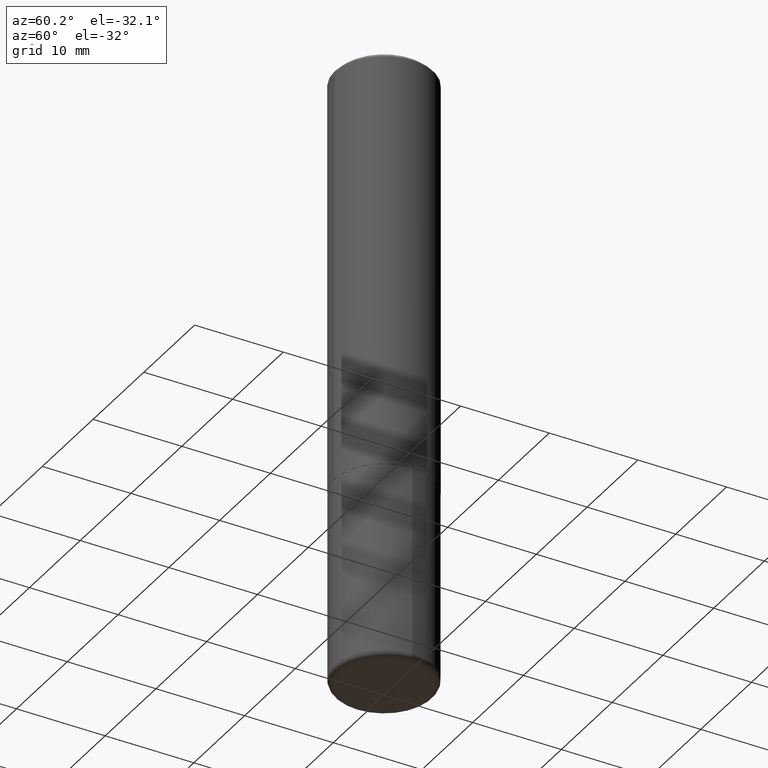
[diagram: clean part render]
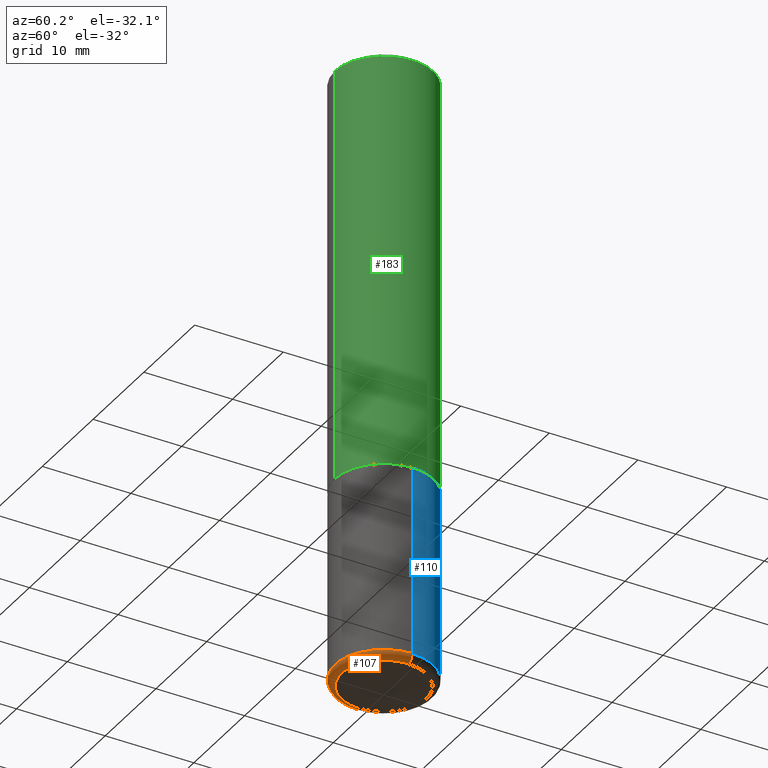
[diagram: same view with three faces highlighted in distinct colors, each labeled with its STEP entity id]
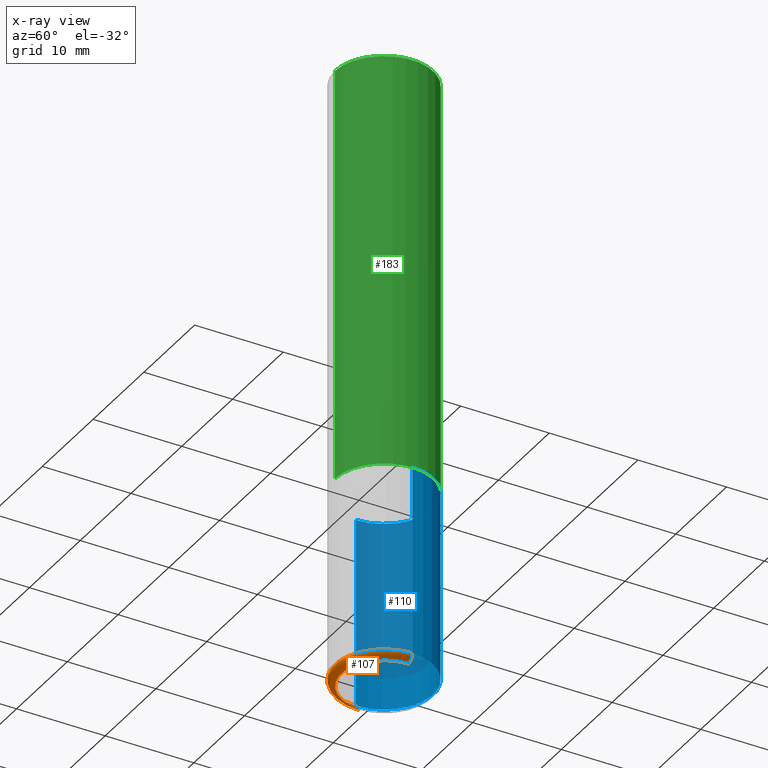
[diagram: x-ray of the same camera — body ghosted, the three highlighted faces saturated]
A machine part, auxiliary view with three faces highlighted in distinct colors.
The next image is the same camera in x-ray (body ghosted, the three faces saturated) — at least one of them is partly hidden behind the body in this view.
Their STEP definitions:

[orange] entity #107 — the highlighted toroidal blend (fillet) surface has major radius 4.7942 mm and minor (blend) radius 0.762 mm.
#43 = CARTESIAN_POINT ( 'NONE',  ( -0.1887500000000000011, -8.155679827906167578E-15, -2.719999999999999751 ) ) ;
#64 = DIRECTION ( 'NONE',  ( 7.105427357601001859E-15, 1.000000000000000000, -3.491481338843145583E-15 ) ) ;
#65 = ORIENTED_EDGE ( 'NONE', *, *, #385, .F. ) ;
#72 = TOROIDAL_SURFACE ( 'NONE', #257, 0.1887500000000000011, 0.02999999999999971440 ) ;
#91 = CARTESIAN_POINT ( 'NONE',  ( -0.1887500000000000011, -8.101470637624799929E-15, -2.749999999999999556 ) ) ;
#92 = CIRCLE ( 'NONE', #117, 0.1887500000000000011 ) ;
#93 = DIRECTION ( 'NONE',  ( 1.000000000000000000, -6.982962677686262766E-15, 4.883557194083112340E-29 ) ) ;
#99 = CARTESIAN_POINT ( 'NONE',  ( 6.651675152823572126E-29, -9.496829241653356490E-15, -2.719999999999999751 ) ) ;
#107 = ADVANCED_FACE ( 'NONE', ( #185 ), #72, .T. ) ;
#109 = CARTESIAN_POINT ( 'NONE',  ( 0.2187499999999998890, -1.102435232739722812E-14, -2.719999999999999751 ) ) ;
#117 = AXIS2_PLACEMENT_3D ( 'NONE', #133, #263, #203 ) ;
#125 = ORIENTED_EDGE ( 'NONE', *, *, #286, .T. ) ;
#133 = CARTESIAN_POINT ( 'NONE',  ( 6.725039217009123399E-29, -9.601573681818648281E-15, -2.749999999999999556 ) ) ;
#153 = DIRECTION ( 'NONE',  ( 1.000000000000000000, -6.982962677686269866E-15, 0.000000000000000000 ) ) ;
#168 = CIRCLE ( 'NONE', #346, 0.02999999999999971440 ) ;
#175 = VERTEX_POINT ( 'NONE', #109 ) ;
#178 = VERTEX_POINT ( 'NONE', #266 ) ;
#185 = FACE_OUTER_BOUND ( 'NONE', #300, .T. ) ;
#191 = ORIENTED_EDGE ( 'NONE', *, *, #362, .F. ) ;
#192 = CARTESIAN_POINT ( 'NONE',  ( 6.651675152823572126E-29, -9.496829241653356490E-15, -2.719999999999999751 ) ) ;
#203 = DIRECTION ( 'NONE',  ( 1.000000000000000000, -6.982962677686272233E-15, 0.000000000000000000 ) ) ;
#219 = VERTEX_POINT ( 'NONE', #91 ) ;
#231 = ORIENTED_EDGE ( 'NONE', *, *, #403, .T. ) ;
#257 = AXIS2_PLACEMENT_3D ( 'NONE', #192, #409, #93 ) ;
#263 = DIRECTION ( 'NONE',  ( -2.445468806185136597E-29, 3.491481338843145583E-15, 1.000000000000000000 ) ) ;
#266 = CARTESIAN_POINT ( 'NONE',  ( 0.1887500000000000011, -1.091960788723193160E-14, -2.749999999999999556 ) ) ;
#271 = CIRCLE ( 'NONE', #301, 0.2187500000000000278 ) ;
#286 = EDGE_CURVE ( 'NONE', #178, #175, #168, .T. ) ;
#288 = DIRECTION ( 'NONE',  ( -1.000000000000000000, 7.105427357600993970E-15, 0.000000000000000000 ) ) ;
#300 = EDGE_LOOP ( 'NONE', ( #191, #231, #125, #65 ) ) ;
#301 = AXIS2_PLACEMENT_3D ( 'NONE', #99, #329, #356 ) ;
#318 = DIRECTION ( 'NONE',  ( -6.982962677686266711E-15, -1.000000000000000000, 3.491481338843145583E-15 ) ) ;
#325 = CARTESIAN_POINT ( 'NONE',  ( -0.2187499999999998890, -7.942517007178138911E-15, -2.719999999999999751 ) ) ;
#329 = DIRECTION ( 'NONE',  ( -2.445468806185136597E-29, 3.491481338843145583E-15, 1.000000000000000000 ) ) ;
#346 = AXIS2_PLACEMENT_3D ( 'NONE', #373, #318, #153 ) ;
#356 = DIRECTION ( 'NONE',  ( 1.000000000000000000, -6.982962677686271444E-15, 0.000000000000000000 ) ) ;
#362 = EDGE_CURVE ( 'NONE', #219, #381, #406, .T. ) ;
#373 = CARTESIAN_POINT ( 'NONE',  ( 0.1887500000000000011, -1.081486344706663980E-14, -2.719999999999999751 ) ) ;
#381 = VERTEX_POINT ( 'NONE', #325 ) ;
#383 = AXIS2_PLACEMENT_3D ( 'NONE', #43, #64, #288 ) ;
#385 = EDGE_CURVE ( 'NONE', #381, #175, #271, .T. ) ;
#403 = EDGE_CURVE ( 'NONE', #219, #178, #92, .T. ) ;
#406 = CIRCLE ( 'NONE', #383, 0.02999999999999971440 ) ;
#409 = DIRECTION ( 'NONE',  ( -2.445468806185136597E-29, 3.491481338843145583E-15, 1.000000000000000000 ) ) ;

[blue] entity #110 — the highlighted cylindrical surface (partial cylindrical patch) has radius 5.5563 mm, axis along (-0, 0, 1).
#5 = DIRECTION ( 'NONE',  ( 1.000000000000000000, -6.982962677686271444E-15, 0.000000000000000000 ) ) ;
#7 = EDGE_CURVE ( 'NONE', #402, #82, #205, .T. ) ;
#10 = CARTESIAN_POINT ( 'NONE',  ( 0.2187500000000000278, -1.527523085743871040E-15, 1.066663669705361025E-29 ) ) ;
#14 = DIRECTION ( 'NONE',  ( -2.445468806185136597E-29, 3.491481338843145583E-15, 1.000000000000000000 ) ) ;
#16 = ORIENTED_EDGE ( 'NONE', *, *, #114, .F. ) ;
#27 = CARTESIAN_POINT ( 'NONE',  ( -0.2187500000000000278, 1.554312234475219354E-15, -1.076017050993260762E-29 ) ) ;
#34 = CARTESIAN_POINT ( 'NONE',  ( 0.000000000000000000, 0.000000000000000000, 0.000000000000000000 ) ) ;
#68 = LINE ( 'NONE', #10, #309 ) ;
#74 = CARTESIAN_POINT ( 'NONE',  ( 6.651675152823572126E-29, -9.496829241653356490E-15, -2.719999999999999751 ) ) ;
#78 = DIRECTION ( 'NONE',  ( -2.445468806185136597E-29, 3.491481338843145583E-15, 1.000000000000000000 ) ) ;
#82 = VERTEX_POINT ( 'NONE', #367 ) ;
#109 = CARTESIAN_POINT ( 'NONE',  ( 0.2187499999999998890, -1.102435232739722812E-14, -2.719999999999999751 ) ) ;
#110 = ADVANCED_FACE ( 'NONE', ( #188 ), #217, .T. ) ;
#113 = DIRECTION ( 'NONE',  ( 1.000000000000000000, -6.982962677686267499E-15, 0.000000000000000000 ) ) ;
#114 = EDGE_CURVE ( 'NONE', #175, #402, #68, .T. ) ;
#142 = AXIS2_PLACEMENT_3D ( 'NONE', #277, #14, #113 ) ;
#162 = DIRECTION ( 'NONE',  ( -2.445468806185136597E-29, 3.491481338843145583E-15, 1.000000000000000000 ) ) ;
#175 = VERTEX_POINT ( 'NONE', #109 ) ;
#186 = AXIS2_PLACEMENT_3D ( 'NONE', #34, #78, #224 ) ;
#188 = FACE_OUTER_BOUND ( 'NONE', #234, .T. ) ;
#193 = DIRECTION ( 'NONE',  ( -2.445468806185136877E-29, 3.491481338843145188E-15, 1.000000000000000000 ) ) ;
#205 = CIRCLE ( 'NONE', #142, 0.2187500000000000000 ) ;
#209 = CIRCLE ( 'NONE', #239, 0.2187500000000000278 ) ;
#217 = CYLINDRICAL_SURFACE ( 'NONE', #186, 0.2187500000000000278 ) ;
#224 = DIRECTION ( 'NONE',  ( 1.000000000000000000, -6.982962677686266711E-15, 4.876176775795935232E-29 ) ) ;
#234 = EDGE_LOOP ( 'NONE', ( #350, #294, #248, #16 ) ) ;
#239 = AXIS2_PLACEMENT_3D ( 'NONE', #74, #162, #5 ) ;
#248 = ORIENTED_EDGE ( 'NONE', *, *, #7, .F. ) ;
#267 = CARTESIAN_POINT ( 'NONE',  ( 0.2187500000000000000, -8.074050596074770339E-15, -1.875000000000000000 ) ) ;
#277 = CARTESIAN_POINT ( 'NONE',  ( 4.585254011597131119E-29, -6.546527510330898707E-15, -1.875000000000000000 ) ) ;
#278 = VECTOR ( 'NONE', #193, 39.37007874015748143 ) ;
#294 = ORIENTED_EDGE ( 'NONE', *, *, #372, .T. ) ;
#299 = LINE ( 'NONE', #27, #278 ) ;
#309 = VECTOR ( 'NONE', #386, 39.37007874015748143 ) ;
#325 = CARTESIAN_POINT ( 'NONE',  ( -0.2187499999999998890, -7.942517007178138911E-15, -2.719999999999999751 ) ) ;
#350 = ORIENTED_EDGE ( 'NONE', *, *, #394, .T. ) ;
#367 = CARTESIAN_POINT ( 'NONE',  ( -0.2187500000000000000, -6.467366141516908442E-15, -1.875000000000000000 ) ) ;
#372 = EDGE_CURVE ( 'NONE', #381, #82, #299, .T. ) ;
#381 = VERTEX_POINT ( 'NONE', #325 ) ;
#386 = DIRECTION ( 'NONE',  ( -2.445468806185136877E-29, 3.491481338843145188E-15, 1.000000000000000000 ) ) ;
#394 = EDGE_CURVE ( 'NONE', #175, #381, #209, .T. ) ;
#402 = VERTEX_POINT ( 'NONE', #267 ) ;

[green] entity #183 — the highlighted cylindrical surface (partial cylindrical patch) has radius 5.5563 mm, axis along (-0, 0, 1).
#18 = CARTESIAN_POINT ( 'NONE',  ( 1.554312234475219551E-15, 0.2187500000000000833, -7.638981828136507804E-16 ) ) ;
#21 = CIRCLE ( 'NONE', #49, 0.2187500000000001943 ) ;
#24 = VECTOR ( 'NONE', #147, 39.37007874015748143 ) ;
#46 = DIRECTION ( 'NONE',  ( -2.445032622590504256E-29, 3.492105978576687648E-15, 1.000000000000000000 ) ) ;
#49 = AXIS2_PLACEMENT_3D ( 'NONE', #222, #291, #197 ) ;
#58 = ORIENTED_EDGE ( 'NONE', *, *, #392, .F. ) ;
#85 = VECTOR ( 'NONE', #327, 39.37007874015748143 ) ;
#86 = EDGE_CURVE ( 'NONE', #118, #347, #313, .T. ) ;
#96 = DIRECTION ( 'NONE',  ( -6.982962677686265922E-15, -1.000000000000000000, 3.492862791899308860E-15 ) ) ;
#118 = VERTEX_POINT ( 'NONE', #165 ) ;
#129 = AXIS2_PLACEMENT_3D ( 'NONE', #303, #46, #312 ) ;
#138 = VERTEX_POINT ( 'NONE', #269 ) ;
#147 = DIRECTION ( 'NONE',  ( -2.445032622590504256E-29, 3.492105978576687648E-15, 1.000000000000000000 ) ) ;
#160 = CIRCLE ( 'NONE', #413, 0.2187499999999999445 ) ;
#165 = CARTESIAN_POINT ( 'NONE',  ( 1.554312234475242822E-15, 0.2187499999999936440, -1.874000000000000776 ) ) ;
#183 = ADVANCED_FACE ( 'NONE', ( #361 ), #332, .T. ) ;
#194 = CARTESIAN_POINT ( 'NONE',  ( -1.527523085743871237E-15, -0.2187500000000000833, 7.638981828136507804E-16 ) ) ;
#197 = DIRECTION ( 'NONE',  ( -6.982962677686265922E-15, -1.000000000000000000, 3.746534391310986401E-15 ) ) ;
#199 = LINE ( 'NONE', #194, #85 ) ;
#201 = ORIENTED_EDGE ( 'NONE', *, *, #86, .T. ) ;
#222 = CARTESIAN_POINT ( 'NONE',  ( 4.581991134734604485E-29, -6.544206603852712761E-15, -1.874000000000000110 ) ) ;
#247 = CARTESIAN_POINT ( 'NONE',  ( -1.500733937012521346E-15, -0.2187500000000000278, -0.01999999999999932734 ) ) ;
#250 = EDGE_CURVE ( 'NONE', #138, #118, #21, .T. ) ;
#269 = CARTESIAN_POINT ( 'NONE',  ( -1.527523085743826075E-15, -0.2187500000000067446, -1.873999999999999222 ) ) ;
#273 = VERTEX_POINT ( 'NONE', #247 ) ;
#283 = CARTESIAN_POINT ( 'NONE',  ( 4.890065245181030653E-31, -6.984211957153406209E-17, -0.02000000000000009062 ) ) ;
#291 = DIRECTION ( 'NONE',  ( -2.445032622590504256E-29, 3.492105978576687648E-15, 1.000000000000000000 ) ) ;
#303 = CARTESIAN_POINT ( 'NONE',  ( 0.000000000000000000, 0.000000000000000000, 0.000000000000000000 ) ) ;
#306 = EDGE_CURVE ( 'NONE', #273, #347, #160, .T. ) ;
#312 = DIRECTION ( 'NONE',  ( -6.982962677686265922E-15, -1.000000000000000000, 3.492105978576688042E-15 ) ) ;
#313 = LINE ( 'NONE', #18, #24 ) ;
#327 = DIRECTION ( 'NONE',  ( -2.445032622590504256E-29, 3.492105978576687648E-15, 1.000000000000000000 ) ) ;
#330 = ORIENTED_EDGE ( 'NONE', *, *, #250, .T. ) ;
#332 = CYLINDRICAL_SURFACE ( 'NONE', #129, 0.2187500000000000833 ) ;
#338 = CARTESIAN_POINT ( 'NONE',  ( 1.527523085743870843E-15, 0.2187499999999998890, -0.02000000000000085390 ) ) ;
#344 = ORIENTED_EDGE ( 'NONE', *, *, #306, .F. ) ;
#347 = VERTEX_POINT ( 'NONE', #338 ) ;
#361 = FACE_OUTER_BOUND ( 'NONE', #365, .T. ) ;
#365 = EDGE_LOOP ( 'NONE', ( #330, #201, #344, #58 ) ) ;
#392 = EDGE_CURVE ( 'NONE', #138, #273, #199, .T. ) ;
#411 = DIRECTION ( 'NONE',  ( -2.445032622590504256E-29, 3.492105978576687648E-15, 1.000000000000000000 ) ) ;
#413 = AXIS2_PLACEMENT_3D ( 'NONE', #283, #411, #96 ) ;